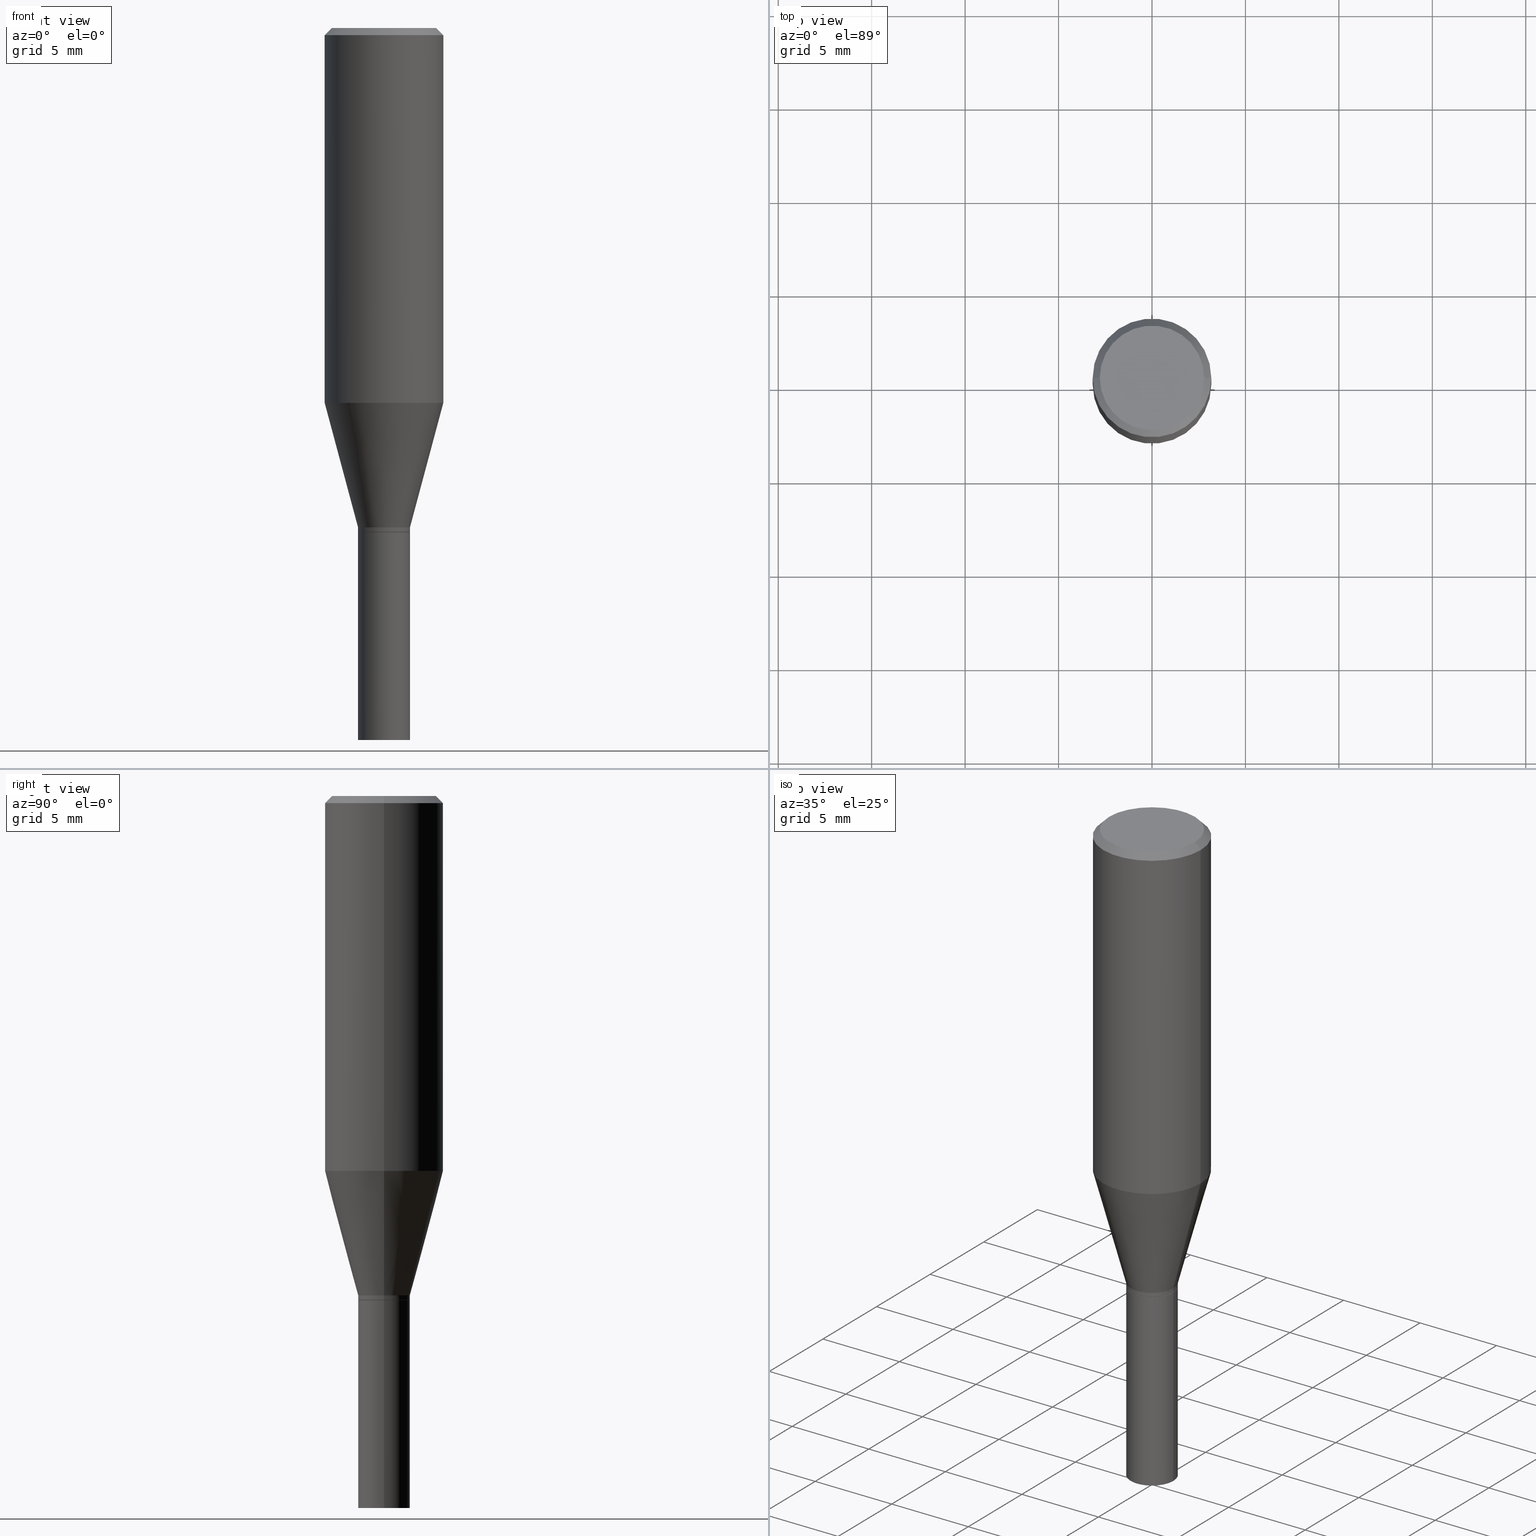
[diagram: canonical four-view strip — front | top / right | iso, engineering-drawing reading convention]
A machine part, canonical four-view strip (front | top / right | iso — engineering-drawing reading convention). The complete STEP part file that produces these views, byte-faithful:
ISO-10303-21;
HEADER;
FILE_DESCRIPTION (( 'STEP AP203' ),
    '1' );
FILE_NAME ('05304.STEP',
    '2024-03-14T18:06:55',
    ( '' ),
    ( '' ),
    'SwSTEP 2.0',
    'SolidWorks 2023',
    '' );
FILE_SCHEMA (( 'CONFIG_CONTROL_DESIGN' ));
ENDSEC;

DATA;
#1 = COORDINATED_UNIVERSAL_TIME_OFFSET ( 5, 0, .BEHIND. ) ;
#2 = CARTESIAN_POINT ( 'NONE',  ( 3.668203209277704895E-29, -5.237222008264718177E-15, -1.500000000000000222 ) ) ;
#3 = AXIS2_PLACEMENT_3D ( 'NONE', #390, #184, #397 ) ;
#4 = ORIENTED_EDGE ( 'NONE', *, *, #311, .T. ) ;
#5 = CARTESIAN_POINT ( 'NONE',  ( 2.572633184106763848E-29, -3.673038368462989448E-15, -1.052000000000000046 ) ) ;
#6 = ORIENTED_EDGE ( 'NONE', *, *, #240, .F. ) ;
#7 = COORDINATED_UNIVERSAL_TIME_OFFSET ( 5, 0, .BEHIND. ) ;
#8 = CARTESIAN_POINT ( 'NONE',  ( 3.668203209277705088E-31, -5.237222008264718399E-17, -0.01499999999999999944 ) ) ;
#9 = VERTEX_POINT ( 'NONE', #372 ) ;
#10 = EDGE_CURVE ( 'NONE', #466, #238, #298, .T. ) ;
#11 = CALENDAR_DATE ( 2024, 14, 3 ) ;
#12 = DIRECTION ( 'NONE',  ( 1.000000000000000000, -6.982962677686270655E-15, 0.000000000000000000 ) ) ;
#13 = AXIS2_PLACEMENT_3D ( 'NONE', #239, #278, #425 ) ;
#14 = CONICAL_SURFACE ( 'NONE', #3, 0.1250000000000000000, 0.7853981633974553844 ) ;
#15 = ORIENTED_EDGE ( 'NONE', *, *, #291, .F. ) ;
#16 = EDGE_CURVE ( 'NONE', #358, #78, #448, .T. ) ;
#17 = ORIENTED_EDGE ( 'NONE', *, *, #36, .T. ) ;
#18 = SHAPE_DEFINITION_REPRESENTATION ( #83, #272 ) ;
#19 = EDGE_LOOP ( 'NONE', ( #419, #158 ) ) ;
#20 =( LENGTH_UNIT ( ) NAMED_UNIT ( * ) SI_UNIT ( $, .METRE. ) );
#21 = EDGE_CURVE ( 'NONE', #417, #261, #107, .T. ) ;
#22 = ORIENTED_EDGE ( 'NONE', *, *, #269, .F. ) ;
#23 = CIRCLE ( 'NONE', #143, 0.05470000000000019291 ) ;
#24 = ORIENTED_EDGE ( 'NONE', *, *, #183, .T. ) ;
#25 = FACE_OUTER_BOUND ( 'NONE', #355, .T. ) ;
#26 = LINE ( 'NONE', #99, #449 ) ;
#27 = AXIS2_PLACEMENT_3D ( 'NONE', #211, #460, #379 ) ;
#28 = AXIS2_PLACEMENT_3D ( 'NONE', #56, #334, #411 ) ;
#29 = CARTESIAN_POINT ( 'NONE',  ( -0.1250000000000000000, -1.868823830520909276E-15, -0.7896368282279090378 ) ) ;
#30 = ADVANCED_FACE ( 'NONE', ( #127 ), #350, .T. ) ;
#31 = FACE_OUTER_BOUND ( 'NONE', #19, .T. ) ;
#32 = FACE_OUTER_BOUND ( 'NONE', #90, .T. ) ;
#33 = DIRECTION ( 'NONE',  ( -2.445468806185136597E-29, 3.491481338843145583E-15, 1.000000000000000000 ) ) ;
#34 = COORDINATED_UNIVERSAL_TIME_OFFSET ( 5, 0, .BEHIND. ) ;
#35 = DIRECTION ( 'NONE',  ( 1.000000000000000000, -6.982962677686268288E-15, 0.000000000000000000 ) ) ;
#36 = EDGE_CURVE ( 'NONE', #188, #43, #221, .T. ) ;
#37 = PERSON_AND_ORGANIZATION_ROLE ( 'creator' ) ;
#38 = CYLINDRICAL_SURFACE ( 'NONE', #377, 0.05469999999999999862 ) ;
#39 = EDGE_LOOP ( 'NONE', ( #313, #84, #185, #365 ) ) ;
#40 = DESIGN_CONTEXT ( 'detailed design', #108, 'design' ) ;
#41 = DIRECTION ( 'NONE',  ( 1.000000000000000000, -6.982962677686266711E-15, 0.000000000000000000 ) ) ;
#42 = LOCAL_TIME ( 14, 6, 55.00000000000000000, #7 ) ;
#43 = VERTEX_POINT ( 'NONE', #92 ) ;
#44 = CC_DESIGN_PERSON_AND_ORGANIZATION_ASSIGNMENT ( #225, #323, ( #191 ) ) ;
#45 = APPROVAL_ROLE ( '' ) ;
#46 = DIRECTION ( 'NONE',  ( -2.445468806185136597E-29, 3.491481338843145583E-15, 1.000000000000000000 ) ) ;
#47 = ORIENTED_EDGE ( 'NONE', *, *, #320, .T. ) ;
#48 = DIRECTION ( 'NONE',  ( -2.445468806185136877E-29, 3.491481338843145188E-15, 1.000000000000000000 ) ) ;
#49 = ORIENTED_EDGE ( 'NONE', *, *, #341, .F. ) ;
#50 = ADVANCED_FACE ( 'NONE', ( #267 ), #94, .F. ) ;
#51 = LOCAL_TIME ( 14, 6, 55.00000000000000000, #215 ) ;
#52 = DIRECTION ( 'NONE',  ( 1.000000000000000000, -6.982962677686268288E-15, 0.000000000000000000 ) ) ;
#53 = UNCERTAINTY_MEASURE_WITH_UNIT (LENGTH_MEASURE( 1.000000000000000082E-05 ), #371, 'distance_accuracy_value', 'NONE');
#54 = CC_DESIGN_PERSON_AND_ORGANIZATION_ASSIGNMENT ( #336, #165, ( #150 ) ) ;
#55 = DIRECTION ( 'NONE',  ( 1.000000000000000000, -6.982962677686266711E-15, 0.000000000000000000 ) ) ;
#56 = CARTESIAN_POINT ( 'NONE',  ( 0.000000000000000000, 0.000000000000000000, 0.000000000000000000 ) ) ;
#57 = EDGE_LOOP ( 'NONE', ( #166, #111, #394, #96 ) ) ;
#58 = ORIENTED_EDGE ( 'NONE', *, *, #16, .T. ) ;
#59 = AXIS2_PLACEMENT_3D ( 'NONE', #461, #457, #421 ) ;
#60 = CIRCLE ( 'NONE', #137, 0.05419999999999999818 ) ;
#61 = ORIENTED_EDGE ( 'NONE', *, *, #385, .T. ) ;
#62 = ADVANCED_FACE ( 'NONE', ( #25 ), #308, .T. ) ;
#63 = CARTESIAN_POINT ( 'NONE',  ( 3.668203209277705088E-31, -5.237222008264718399E-17, -0.01499999999999999944 ) ) ;
#64 = LINE ( 'NONE', #66, #337 ) ;
#65 = VECTOR ( 'NONE', #129, 39.37007874015748143 ) ;
#66 = CARTESIAN_POINT ( 'NONE',  ( 0.05470000000000007495, -4.055006426932429417E-15, -1.052000000000000046 ) ) ;
#67 = LINE ( 'NONE', #172, #131 ) ;
#68 = PLANE ( 'NONE',  #59 ) ;
#69 = VECTOR ( 'NONE', #48, 39.37007874015748143 ) ;
#70 = DATE_TIME_ROLE ( 'classification_date' ) ;
#71 = CARTESIAN_POINT ( 'NONE',  ( 0.05470000000000019291, -4.088175499651439563E-15, -1.061500000000000110 ) ) ;
#72 = ADVANCED_FACE ( 'NONE', ( #193 ), #331, .F. ) ;
#73 = CALENDAR_DATE ( 2024, 14, 3 ) ;
#74 = DIRECTION ( 'NONE',  ( -2.445468806185136597E-29, 3.491481338843145583E-15, 1.000000000000000000 ) ) ;
#75 = ORIENTED_EDGE ( 'NONE', *, *, #95, .F. ) ;
#76 = DATE_AND_TIME ( #73, #132 ) ;
#77 = DIRECTION ( 'NONE',  ( 1.000000000000000000, -6.982962677686266711E-15, 4.876176775795935793E-29 ) ) ;
#78 = VERTEX_POINT ( 'NONE', #458 ) ;
#79 = ADVANCED_FACE ( 'NONE', ( #274 ), #205, .T. ) ;
#80 = APPLICATION_PROTOCOL_DEFINITION ( 'international standard', 'config_control_design', 1994, #108 ) ;
#81 = LINE ( 'NONE', #224, #154 ) ;
#82 = CIRCLE ( 'NONE', #440, 0.05470000000000007495 ) ;
#83 = PRODUCT_DEFINITION_SHAPE ( 'NONE', 'NONE',  #395 ) ;
#84 = ORIENTED_EDGE ( 'NONE', *, *, #291, .T. ) ;
#85 = PERSON_AND_ORGANIZATION ( #462, #283 ) ;
#86 = FACE_OUTER_BOUND ( 'NONE', #453, .T. ) ;
#87 = EDGE_LOOP ( 'NONE', ( #317, #414 ) ) ;
#88 = ORIENTED_EDGE ( 'NONE', *, *, #353, .F. ) ;
#89 = VECTOR ( 'NONE', #189, 39.37007874015748143 ) ;
#90 = EDGE_LOOP ( 'NONE', ( #4, #290, #49, #6 ) ) ;
#91 = CARTESIAN_POINT ( 'NONE',  ( 2.597087872168615393E-29, -3.707953181851421097E-15, -1.062000000000000055 ) ) ;
#92 = CARTESIAN_POINT ( 'NONE',  ( 0.1250000000000000000, -3.629872584931818241E-15, -0.7896368282279090378 ) ) ;
#93 = APPROVAL_DATE_TIME ( #114, #179 ) ;
#94 = PLANE ( 'NONE',  #136 ) ;
#95 = EDGE_CURVE ( 'NONE', #378, #146, #387, .T. ) ;
#96 = ORIENTED_EDGE ( 'NONE', *, *, #155, .T. ) ;
#97 = AXIS2_PLACEMENT_3D ( 'NONE', #98, #345, #310 ) ;
#98 = CARTESIAN_POINT ( 'NONE',  ( 0.000000000000000000, 0.000000000000000000, 0.000000000000000000 ) ) ;
#99 = CARTESIAN_POINT ( 'NONE',  ( -0.05469999999999999862, 3.886668764607747919E-16, -2.690657494369433708E-30 ) ) ;
#100 = CC_DESIGN_DATE_AND_TIME_ASSIGNMENT ( #223, #396, ( #395 ) ) ;
#101 = CARTESIAN_POINT ( 'NONE',  ( 0.05469999999999999862, -3.819680584694387859E-16, 2.667268696360376954E-30 ) ) ;
#102 = AXIS2_PLACEMENT_3D ( 'NONE', #115, #226, #35 ) ;
#103 = CARTESIAN_POINT ( 'NONE',  ( 0.1250000000000000000, -9.252425547934304180E-16, -0.01499999999999999944 ) ) ;
#104 = CYLINDRICAL_SURFACE ( 'NONE', #142, 0.1250000000000000000 ) ;
#105 = ADVANCED_FACE ( 'NONE', ( #204 ), #138, .T. ) ;
#106 = CARTESIAN_POINT ( 'NONE',  ( 2.595865137765522592E-29, -3.706207441181998805E-15, -1.061500000000000110 ) ) ;
#107 = CIRCLE ( 'NONE', #199, 0.05419999999999999818 ) ;
#108 = APPLICATION_CONTEXT ( 'configuration controlled 3d designs of mechanical parts and assemblies' ) ;
#109 = PERSON_AND_ORGANIZATION ( #462, #283 ) ;
#110 = LINE ( 'NONE', #187, #69 ) ;
#111 = ORIENTED_EDGE ( 'NONE', *, *, #149, .F. ) ;
#112 = CARTESIAN_POINT ( 'NONE',  ( 2.597087872168614833E-29, -3.707953181851420308E-15, -1.061999999999999833 ) ) ;
#113 = ADVANCED_FACE ( 'NONE', ( #31 ), #68, .F. ) ;
#114 = DATE_AND_TIME ( #144, #182 ) ;
#115 = CARTESIAN_POINT ( 'NONE',  ( 2.572633184106763848E-29, -3.673038368462989448E-15, -1.052000000000000046 ) ) ;
#116 = ORIENTED_EDGE ( 'NONE', *, *, #415, .T. ) ;
#117 = CIRCLE ( 'NONE', #13, 0.1100000000000000006 ) ;
#118 = CIRCLE ( 'NONE', #102, 0.05470000000000007495 ) ;
#119 = CALENDAR_DATE ( 2024, 14, 3 ) ;
#120 = CARTESIAN_POINT ( 'NONE',  ( 0.000000000000000000, 0.000000000000000000, 0.000000000000000000 ) ) ;
#121 = DIRECTION ( 'NONE',  ( 1.000000000000000000, -6.982962677686269866E-15, 0.000000000000000000 ) ) ;
#122 = CARTESIAN_POINT ( 'NONE',  ( -0.05470000000000013740, 3.886668764607757780E-16, -2.690657494369440014E-30 ) ) ;
#123 = DIRECTION ( 'NONE',  ( 1.000000000000000000, 0.000000000000000000, 0.000000000000000000 ) ) ;
#124 = CIRCLE ( 'NONE', #382, 0.1250000000000000000 ) ;
#125 = CIRCLE ( 'NONE', #231, 0.05469999999999999862 ) ;
#126 = CARTESIAN_POINT ( 'NONE',  ( 1.931032231646322477E-29, -2.757002250221034902E-15, -0.7896368282279090378 ) ) ;
#127 = FACE_OUTER_BOUND ( 'NONE', #39, .T. ) ;
#128 = CARTESIAN_POINT ( 'NONE',  ( 0.05470000000000013740, -3.819680584694397720E-16, 2.667268696360383260E-30 ) ) ;
#129 = DIRECTION ( 'NONE',  ( -2.445468806185136877E-29, 3.491481338843145188E-15, 1.000000000000000000 ) ) ;
#130 = AXIS2_PLACEMENT_3D ( 'NONE', #229, #235, #203 ) ;
#131 = VECTOR ( 'NONE', #327, 39.37007874015748854 ) ;
#132 = LOCAL_TIME ( 14, 6, 55.00000000000000000, #314 ) ;
#133 = FACE_OUTER_BOUND ( 'NONE', #433, .T. ) ;
#134 = CARTESIAN_POINT ( 'NONE',  ( 0.05469999999999999862, -4.089921240320859489E-15, -1.062000000000000055 ) ) ;
#135 = CARTESIAN_POINT ( 'NONE',  ( 2.572633184106763848E-29, -3.673038368462989448E-15, -1.052000000000000046 ) ) ;
#136 = AXIS2_PLACEMENT_3D ( 'NONE', #236, #376, #271 ) ;
#137 = AXIS2_PLACEMENT_3D ( 'NONE', #112, #178, #438 ) ;
#138 = CYLINDRICAL_SURFACE ( 'NONE', #97, 0.05469999999999999862 ) ;
#139 = FACE_OUTER_BOUND ( 'NONE', #285, .T. ) ;
#140 = FACE_OUTER_BOUND ( 'NONE', #153, .T. ) ;
#141 = ORIENTED_EDGE ( 'NONE', *, *, #353, .T. ) ;
#142 = AXIS2_PLACEMENT_3D ( 'NONE', #456, #342, #351 ) ;
#143 = AXIS2_PLACEMENT_3D ( 'NONE', #431, #249, #360 ) ;
#144 = CALENDAR_DATE ( 2024, 14, 3 ) ;
#145 = CARTESIAN_POINT ( 'NONE',  ( 1.931032231646322477E-29, -2.757002250221034902E-15, -0.7896368282279090378 ) ) ;
#146 = VERTEX_POINT ( 'NONE', #171 ) ;
#147 = DIRECTION ( 'NONE',  ( -2.445468806185136597E-29, 3.491481338843145583E-15, 1.000000000000000000 ) ) ;
#148 = ORIENTED_EDGE ( 'NONE', *, *, #155, .F. ) ;
#149 = EDGE_CURVE ( 'NONE', #378, #167, #117, .T. ) ;
#150 = PRODUCT ( '05304', '05304', '', ( #195 ) ) ;
#151 = APPROVAL_ROLE ( '' ) ;
#152 = DIRECTION ( 'NONE',  ( -2.445468806185136597E-29, 3.491481338843145583E-15, 1.000000000000000000 ) ) ;
#153 = EDGE_LOOP ( 'NONE', ( #335, #301, #177, #321 ) ) ;
#154 = VECTOR ( 'NONE', #260, 39.37007874015748143 ) ;
#155 = EDGE_CURVE ( 'NONE', #146, #259, #190, .T. ) ;
#156 = APPROVAL_DATE_TIME ( #175, #243 ) ;
#157 = DIRECTION ( 'NONE',  ( 1.000000000000000000, -6.982962677686260400E-15, 0.000000000000000000 ) ) ;
#158 = ORIENTED_EDGE ( 'NONE', *, *, #426, .T. ) ;
#159 = ADVANCED_FACE ( 'NONE', ( #139 ), #104, .T. ) ;
#160 = CARTESIAN_POINT ( 'NONE',  ( 2.597087872168614833E-29, -3.707953181851420308E-15, -1.061999999999999833 ) ) ;
#161 = CARTESIAN_POINT ( 'NONE',  ( 0.000000000000000000, 0.000000000000000000, 0.000000000000000000 ) ) ;
#162 = VERTEX_POINT ( 'NONE', #134 ) ;
#163 = AXIS2_PLACEMENT_3D ( 'NONE', #217, #74, #289 ) ;
#164 = ORIENTED_EDGE ( 'NONE', *, *, #16, .F. ) ;
#165 = PERSON_AND_ORGANIZATION_ROLE ( 'design_owner' ) ;
#166 = ORIENTED_EDGE ( 'NONE', *, *, #266, .F. ) ;
#167 = VERTEX_POINT ( 'NONE', #279 ) ;
#168 = CARTESIAN_POINT ( 'NONE',  ( 3.576687321579069994E-29, -5.368277968210015545E-15, -1.500000000000000222 ) ) ;
#169 = APPROVAL_PERSON_ORGANIZATION ( #286, #243, #45 ) ;
#170 = DIRECTION ( 'NONE',  ( -0.7071067811865524577, 2.468850131082309125E-15, -0.7071067811865424657 ) ) ;
#171 = CARTESIAN_POINT ( 'NONE',  ( -0.1250000000000000000, -5.165088154517157584E-16, -0.01499999999999999944 ) ) ;
#172 = CARTESIAN_POINT ( 'NONE',  ( 0.1250000000000000000, -9.099344698040885245E-16, -0.01499999999999999944 ) ) ;
#173 = CONICAL_SURFACE ( 'NONE', #370, 0.05470000000000007495, 0.2617993877991500740 ) ;
#174 = DIRECTION ( 'NONE',  ( 2.438088387897960049E-29, -3.491481338843145188E-15, -1.000000000000000000 ) ) ;
#175 = DATE_AND_TIME ( #11, #51 ) ;
#176 = LINE ( 'NONE', #257, #89 ) ;
#177 = ORIENTED_EDGE ( 'NONE', *, *, #240, .T. ) ;
#178 = DIRECTION ( 'NONE',  ( -2.445468806185136597E-29, 3.491481338843145583E-15, 1.000000000000000000 ) ) ;
#179 = APPROVAL ( #248, 'UNSPECIFIED' ) ;
#180 = ORIENTED_EDGE ( 'NONE', *, *, #443, .F. ) ;
#181 =( GEOMETRIC_REPRESENTATION_CONTEXT ( 3 ) GLOBAL_UNCERTAINTY_ASSIGNED_CONTEXT ( ( #53 ) ) GLOBAL_UNIT_ASSIGNED_CONTEXT ( ( #371, #408, #228 ) ) REPRESENTATION_CONTEXT ( 'NONE', 'WORKASPACE' ) );
#182 = LOCAL_TIME ( 14, 6, 55.00000000000000000, #1 ) ;
#183 = EDGE_CURVE ( 'NONE', #9, #162, #420, .T. ) ;
#184 = DIRECTION ( 'NONE',  ( 2.445468806185136597E-29, -3.491481338843145583E-15, -1.000000000000000000 ) ) ;
#185 = ORIENTED_EDGE ( 'NONE', *, *, #409, .T. ) ;
#186 = APPROVAL_STATUS ( 'not_yet_approved' ) ;
#187 = CARTESIAN_POINT ( 'NONE',  ( -0.1250000000000000000, 8.881784197001252323E-16, -6.148668862818632227E-30 ) ) ;
#188 = VERTEX_POINT ( 'NONE', #29 ) ;
#189 = DIRECTION ( 'NONE',  ( -0.7071067811867588482, 7.493145998871117778E-15, 0.7071067811863361863 ) ) ;
#190 = CIRCLE ( 'NONE', #27, 0.1250000000000000000 ) ;
#191 = PRODUCT_DEFINITION_FORMATION_WITH_SPECIFIED_SOURCE ( 'ANY', '', #150, .NOT_KNOWN. ) ;
#192 = DIRECTION ( 'NONE',  ( -2.445468806185136597E-29, 3.491481338843145583E-15, 1.000000000000000000 ) ) ;
#193 = FACE_OUTER_BOUND ( 'NONE', #87, .T. ) ;
#194 = APPLICATION_PROTOCOL_DEFINITION ( 'international standard', 'config_control_design', 1994, #442 ) ;
#195 = MECHANICAL_CONTEXT ( 'NONE', #442, 'mechanical' ) ;
#196 = ORIENTED_EDGE ( 'NONE', *, *, #212, .F. ) ;
#197 = CARTESIAN_POINT ( 'NONE',  ( 3.668203209277704895E-29, -5.237222008264718177E-15, -1.500000000000000222 ) ) ;
#198 = ORIENTED_EDGE ( 'NONE', *, *, #332, .T. ) ;
#199 = AXIS2_PLACEMENT_3D ( 'NONE', #160, #446, #451 ) ;
#200 = CIRCLE ( 'NONE', #459, 0.1100000000000000006 ) ;
#201 = CARTESIAN_POINT ( 'NONE',  ( 2.597087872168614833E-29, -3.707953181851420308E-15, -1.061999999999999833 ) ) ;
#202 = CC_DESIGN_SECURITY_CLASSIFICATION ( #297, ( #191 ) ) ;
#203 = DIRECTION ( 'NONE',  ( 1.000000000000000000, -6.982962677686268288E-15, 0.000000000000000000 ) ) ;
#204 = FACE_OUTER_BOUND ( 'NONE', #251, .T. ) ;
#205 = CYLINDRICAL_SURFACE ( 'NONE', #262, 0.05470000000000013740 ) ;
#206 = AXIS2_PLACEMENT_3D ( 'NONE', #161, #447, #123 ) ;
#207 = DIRECTION ( 'NONE',  ( 0.2588190451025213501, 1.565188264969621968E-15, 0.9659258262890682012 ) ) ;
#208 = APPROVAL ( #427, 'UNSPECIFIED' ) ;
#209 = ADVANCED_FACE ( 'NONE', ( #133 ), #242, .F. ) ;
#210 = CARTESIAN_POINT ( 'NONE',  ( 3.819680584694646704E-16, 0.05469999999999629325, -1.062000000000000277 ) ) ;
#211 = CARTESIAN_POINT ( 'NONE',  ( 3.668203209277705088E-31, -5.237222008264718399E-17, -0.01499999999999999944 ) ) ;
#212 = EDGE_CURVE ( 'NONE', #259, #146, #124, .T. ) ;
#213 = AXIS2_PLACEMENT_3D ( 'NONE', #168, #273, #245 ) ;
#214 = CIRCLE ( 'NONE', #222, 0.1250000000000000000 ) ;
#215 = COORDINATED_UNIVERSAL_TIME_OFFSET ( 5, 0, .BEHIND. ) ;
#216 = CARTESIAN_POINT ( 'NONE',  ( -0.05469999999999999862, -4.083920718597295042E-15, -1.500000000000000222 ) ) ;
#217 = CARTESIAN_POINT ( 'NONE',  ( 2.597087872168615393E-29, -3.707953181851421097E-15, -1.062000000000000055 ) ) ;
#218 = ORIENTED_EDGE ( 'NONE', *, *, #230, .T. ) ;
#219 = CARTESIAN_POINT ( 'NONE',  ( -0.1100000000000000006, 7.943120045868123256E-16, -2.196503395834883125E-16 ) ) ;
#220 = ORIENTED_EDGE ( 'NONE', *, *, #300, .F. ) ;
#221 = CIRCLE ( 'NONE', #439, 0.1250000000000000000 ) ;
#222 = AXIS2_PLACEMENT_3D ( 'NONE', #145, #319, #41 ) ;
#223 = DATE_AND_TIME ( #119, #391 ) ;
#224 = CARTESIAN_POINT ( 'NONE',  ( 0.05419999999999999818, -4.086429758982016481E-15, -1.061999999999999833 ) ) ;
#225 = PERSON_AND_ORGANIZATION ( #462, #283 ) ;
#226 = DIRECTION ( 'NONE',  ( -2.445468806185136597E-29, 3.491481338843145583E-15, 1.000000000000000000 ) ) ;
#227 = ORIENTED_EDGE ( 'NONE', *, *, #385, .F. ) ;
#228 =( NAMED_UNIT ( * ) SI_UNIT ( $, .STERADIAN. ) SOLID_ANGLE_UNIT ( ) );
#229 = CARTESIAN_POINT ( 'NONE',  ( 2.597087872168614833E-29, -3.707953181851420308E-15, -1.061999999999999833 ) ) ;
#230 = EDGE_CURVE ( 'NONE', #368, #253, #26, .T. ) ;
#231 = AXIS2_PLACEMENT_3D ( 'NONE', #91, #234, #121 ) ;
#232 = DIRECTION ( 'NONE',  ( 1.000000000000000000, -6.982962677686266711E-15, 4.880309236314112093E-29 ) ) ;
#233 = ORIENTED_EDGE ( 'NONE', *, *, #443, .T. ) ;
#234 = DIRECTION ( 'NONE',  ( -2.445468806185136597E-29, 3.491481338843145583E-15, 1.000000000000000000 ) ) ;
#235 = DIRECTION ( 'NONE',  ( -2.445468806185136597E-29, 3.491481338843145583E-15, 1.000000000000000000 ) ) ;
#236 = CARTESIAN_POINT ( 'NONE',  ( 2.597087872168615393E-29, -3.707953181851421097E-15, -1.062000000000000055 ) ) ;
#237 = AXIS2_PLACEMENT_3D ( 'NONE', #2, #435, #157 ) ;
#238 = VERTEX_POINT ( 'NONE', #380 ) ;
#239 = CARTESIAN_POINT ( 'NONE',  ( 5.371480537193796611E-45, -7.669050617262902492E-31, -2.196503395834828644E-16 ) ) ;
#240 = EDGE_CURVE ( 'NONE', #78, #43, #64, .T. ) ;
#241 = DIRECTION ( 'NONE',  ( -2.445468806185136877E-29, 3.491481338843145188E-15, 1.000000000000000000 ) ) ;
#242 = PLANE ( 'NONE',  #316 ) ;
#243 = APPROVAL ( #186, 'UNSPECIFIED' ) ;
#244 = DIRECTION ( 'NONE',  ( -1.000000000000000000, 6.982962677686265922E-15, -4.876176775795935793E-29 ) ) ;
#245 = DIRECTION ( 'NONE',  ( 1.000000000000000000, -6.982962677686265922E-15, 4.876176775795935793E-29 ) ) ;
#246 = SECURITY_CLASSIFICATION_LEVEL ( 'unclassified' ) ;
#247 = FACE_OUTER_BOUND ( 'NONE', #57, .T. ) ;
#248 = APPROVAL_STATUS ( 'not_yet_approved' ) ;
#249 = DIRECTION ( 'NONE',  ( -2.445468806185136597E-29, 3.491481338843145583E-15, 1.000000000000000000 ) ) ;
#250 = DIRECTION ( 'NONE',  ( -1.000000000000000000, 6.982962677686266711E-15, 0.000000000000000000 ) ) ;
#251 = EDGE_LOOP ( 'NONE', ( #198, #218, #180, #299 ) ) ;
#252 = CARTESIAN_POINT ( 'NONE',  ( -0.05470000000000007495, -3.284371492002214064E-15, -1.052000000000000046 ) ) ;
#253 = VERTEX_POINT ( 'NONE', #306 ) ;
#254 = CLOSED_SHELL ( 'NONE', ( #105, #72, #381, #209 ) ) ;
#255 = AXIS2_PLACEMENT_3D ( 'NONE', #197, #413, #292 ) ;
#256 = DATE_AND_TIME ( #430, #42 ) ;
#257 = CARTESIAN_POINT ( 'NONE',  ( -0.05419999999999999818, -3.322839019069446218E-15, -1.061999999999999833 ) ) ;
#258 = ADVANCED_FACE ( 'NONE', ( #32 ), #173, .T. ) ;
#259 = VERTEX_POINT ( 'NONE', #103 ) ;
#260 = DIRECTION ( 'NONE',  ( 0.7071067811867588482, -2.468850131084470210E-15, 0.7071067811863361863 ) ) ;
#261 = VERTEX_POINT ( 'NONE', #384 ) ;
#262 = AXIS2_PLACEMENT_3D ( 'NONE', #303, #33, #309 ) ;
#263 = CONICAL_SURFACE ( 'NONE', #432, 0.05470000000000007495, 0.2617993877991500740 ) ;
#264 = CARTESIAN_POINT ( 'NONE',  ( 5.371480537193796611E-45, -7.669050617262902492E-31, -2.196503395834828644E-16 ) ) ;
#265 = DIRECTION ( 'NONE',  ( -2.445468806185136597E-29, 3.491481338843145583E-15, 1.000000000000000000 ) ) ;
#266 = EDGE_CURVE ( 'NONE', #167, #259, #67, .T. ) ;
#267 = FACE_OUTER_BOUND ( 'NONE', #416, .T. ) ;
#268 = ORIENTED_EDGE ( 'NONE', *, *, #341, .T. ) ;
#269 = EDGE_CURVE ( 'NONE', #43, #259, #284, .T. ) ;
#270 = CIRCLE ( 'NONE', #450, 0.05470000000000019291 ) ;
#271 = DIRECTION ( 'NONE',  ( 1.000000000000000000, -6.982962677686265922E-15, 4.876176775795935793E-29 ) ) ;
#272 = ADVANCED_BREP_SHAPE_REPRESENTATION ( '05304', ( #362, #356, #206 ), #181 ) ;
#273 = DIRECTION ( 'NONE',  ( -2.438088387897960049E-29, 3.491481338843145188E-15, 1.000000000000000000 ) ) ;
#274 = FACE_OUTER_BOUND ( 'NONE', #441, .T. ) ;
#275 = EDGE_CURVE ( 'NONE', #466, #358, #270, .T. ) ;
#276 = DIRECTION ( 'NONE',  ( -2.445468806185136597E-29, 3.491481338843145583E-15, 1.000000000000000000 ) ) ;
#277 = AXIS2_PLACEMENT_3D ( 'NONE', #354, #152, #77 ) ;
#278 = DIRECTION ( 'NONE',  ( -2.445468806185136597E-29, 3.491481338843145583E-15, 1.000000000000000000 ) ) ;
#279 = CARTESIAN_POINT ( 'NONE',  ( 0.1100000000000000006, -8.322946247794788808E-16, -2.196503395834772438E-16 ) ) ;
#280 = PERSON_AND_ORGANIZATION ( #462, #283 ) ;
#281 = DIRECTION ( 'NONE',  ( -2.445468806185136597E-29, 3.491481338843145583E-15, 1.000000000000000000 ) ) ;
#282 = ORIENTED_EDGE ( 'NONE', *, *, #269, .T. ) ;
#283 = ORGANIZATION ( 'UNSPECIFIED', 'UNSPECIFIED', '' ) ;
#284 = LINE ( 'NONE', #324, #418 ) ;
#285 = EDGE_LOOP ( 'NONE', ( #220, #17, #282, #148 ) ) ;
#286 = PERSON_AND_ORGANIZATION ( #462, #283 ) ;
#287 = DIRECTION ( 'NONE',  ( 1.000000000000000000, -6.982962677686268288E-15, 0.000000000000000000 ) ) ;
#288 = EDGE_LOOP ( 'NONE', ( #61, #410, #398, #164 ) ) ;
#289 = DIRECTION ( 'NONE',  ( 1.000000000000000000, -6.982962677686269866E-15, 0.000000000000000000 ) ) ;
#290 = ORIENTED_EDGE ( 'NONE', *, *, #399, .T. ) ;
#291 = EDGE_CURVE ( 'NONE', #261, #417, #60, .T. ) ;
#292 = DIRECTION ( 'NONE',  ( 1.000000000000000000, -6.982962677686260400E-15, 0.000000000000000000 ) ) ;
#293 = ORIENTED_EDGE ( 'NONE', *, *, #230, .F. ) ;
#294 = ORIENTED_EDGE ( 'NONE', *, *, #300, .T. ) ;
#295 = FACE_OUTER_BOUND ( 'NONE', #288, .T. ) ;
#296 = DIRECTION ( 'NONE',  ( -2.445468806185136877E-29, 3.491481338843145188E-15, 1.000000000000000000 ) ) ;
#297 = SECURITY_CLASSIFICATION ( '', '', #246 ) ;
#298 = LINE ( 'NONE', #122, #429 ) ;
#299 = ORIENTED_EDGE ( 'NONE', *, *, #183, .F. ) ;
#300 = EDGE_CURVE ( 'NONE', #188, #146, #110, .T. ) ;
#301 = ORIENTED_EDGE ( 'NONE', *, *, #386, .T. ) ;
#302 = CC_DESIGN_APPROVAL ( #243, ( #191 ) ) ;
#303 = CARTESIAN_POINT ( 'NONE',  ( 0.000000000000000000, 0.000000000000000000, 0.000000000000000000 ) ) ;
#304 = DIRECTION ( 'NONE',  ( -2.445468806185136597E-29, 3.491481338843145583E-15, 1.000000000000000000 ) ) ;
#305 = DIMENSIONAL_EXPONENTS ( 1.000000000000000000, 0.000000000000000000, 0.000000000000000000, 0.000000000000000000, 0.000000000000000000, 0.000000000000000000, 0.000000000000000000 ) ;
#306 = CARTESIAN_POINT ( 'NONE',  ( -0.05469999999999999862, -4.083920718597295042E-15, -1.062000000000000055 ) ) ;
#307 = ADVANCED_FACE ( 'NONE', ( #140 ), #263, .T. ) ;
#308 = CONICAL_SURFACE ( 'NONE', #401, 0.05419999999999999818, 0.7853981633977471510 ) ;
#309 = DIRECTION ( 'NONE',  ( 1.000000000000000000, -6.982962677686267499E-15, 4.876176775795935232E-29 ) ) ;
#310 = DIRECTION ( 'NONE',  ( 1.000000000000000000, -6.982962677686266711E-15, 4.876176775795935793E-29 ) ) ;
#311 = EDGE_CURVE ( 'NONE', #78, #238, #118, .T. ) ;
#312 = CYLINDRICAL_SURFACE ( 'NONE', #277, 0.1250000000000000000 ) ;
#313 = ORIENTED_EDGE ( 'NONE', *, *, #320, .F. ) ;
#314 = COORDINATED_UNIVERSAL_TIME_OFFSET ( 5, 0, .BEHIND. ) ;
#315 = DIRECTION ( 'NONE',  ( 1.000000000000000000, -6.982962677686268288E-15, 0.000000000000000000 ) ) ;
#316 = AXIS2_PLACEMENT_3D ( 'NONE', #210, #174, #244 ) ;
#317 = ORIENTED_EDGE ( 'NONE', *, *, #332, .F. ) ;
#318 = CIRCLE ( 'NONE', #237, 0.05469999999999999862 ) ;
#319 = DIRECTION ( 'NONE',  ( -2.445468806185136597E-29, 3.491481338843145583E-15, 1.000000000000000000 ) ) ;
#320 = EDGE_CURVE ( 'NONE', #261, #466, #176, .T. ) ;
#321 = ORIENTED_EDGE ( 'NONE', *, *, #36, .F. ) ;
#322 = CC_DESIGN_DATE_AND_TIME_ASSIGNMENT ( #76, #70, ( #297 ) ) ;
#323 = PERSON_AND_ORGANIZATION_ROLE ( 'design_supplier' ) ;
#324 = CARTESIAN_POINT ( 'NONE',  ( 0.1250000000000000000, -8.728703347107833388E-16, 6.095220969744919741E-30 ) ) ;
#325 = ORIENTED_EDGE ( 'NONE', *, *, #212, .T. ) ;
#326 = PERSON_AND_ORGANIZATION ( #462, #283 ) ;
#327 = DIRECTION ( 'NONE',  ( 0.7071067811865524577, -7.319954787623271823E-15, -0.7071067811865424657 ) ) ;
#328 = CLOSED_SHELL ( 'NONE', ( #455, #62, #346, #369, #258, #307, #159, #349, #113, #50, #30, #79 ) ) ;
#329 = CC_DESIGN_APPROVAL ( #208, ( #395 ) ) ;
#330 = LENGTH_MEASURE_WITH_UNIT ( LENGTH_MEASURE( 0.02539999999999999897 ), #20 );
#331 = PLANE ( 'NONE',  #213 ) ;
#332 = EDGE_CURVE ( 'NONE', #9, #368, #318, .T. ) ;
#333 = EDGE_LOOP ( 'NONE', ( #340, #375, #325, #75 ) ) ;
#334 = DIRECTION ( 'NONE',  ( -2.445468806185136597E-29, 3.491481338843145583E-15, 1.000000000000000000 ) ) ;
#335 = ORIENTED_EDGE ( 'NONE', *, *, #399, .F. ) ;
#336 = PERSON_AND_ORGANIZATION ( #462, #283 ) ;
#337 = VECTOR ( 'NONE', #207, 39.37007874015747433 ) ;
#338 = CIRCLE ( 'NONE', #255, 0.05469999999999999862 ) ;
#339 = DIRECTION ( 'NONE',  ( -2.445468806185136597E-29, 3.491481338843145583E-15, 1.000000000000000000 ) ) ;
#340 = ORIENTED_EDGE ( 'NONE', *, *, #426, .F. ) ;
#341 = EDGE_CURVE ( 'NONE', #43, #188, #214, .T. ) ;
#342 = DIRECTION ( 'NONE',  ( -2.445468806185136597E-29, 3.491481338843145583E-15, 1.000000000000000000 ) ) ;
#343 = VECTOR ( 'NONE', #348, 39.37007874015748143 ) ;
#344 = CONICAL_SURFACE ( 'NONE', #454, 0.1250000000000000000, 0.7853981633974553844 ) ;
#345 = DIRECTION ( 'NONE',  ( -2.445468806185136597E-29, 3.491481338843145583E-15, 1.000000000000000000 ) ) ;
#346 = ADVANCED_FACE ( 'NONE', ( #406 ), #344, .T. ) ;
#347 = CARTESIAN_POINT ( 'NONE',  ( -0.1250000000000000000, 8.204981146281362596E-16, -0.01499999999999999944 ) ) ;
#348 = DIRECTION ( 'NONE',  ( -2.445468806185136877E-29, 3.491481338843145188E-15, 1.000000000000000000 ) ) ;
#349 = ADVANCED_FACE ( 'NONE', ( #247 ), #14, .T. ) ;
#350 = CONICAL_SURFACE ( 'NONE', #130, 0.05419999999999999818, 0.7853981633977471510 ) ;
#351 = DIRECTION ( 'NONE',  ( 1.000000000000000000, -6.982962677686266711E-15, 4.876176775795935793E-29 ) ) ;
#352 = APPROVAL_PERSON_ORGANIZATION ( #280, #208, #151 ) ;
#353 = EDGE_CURVE ( 'NONE', #253, #162, #363, .T. ) ;
#354 = CARTESIAN_POINT ( 'NONE',  ( 0.000000000000000000, 0.000000000000000000, 0.000000000000000000 ) ) ;
#355 = EDGE_LOOP ( 'NONE', ( #437, #47, #227, #361 ) ) ;
#356 = MANIFOLD_SOLID_BREP ( 'Body-Move/Copy2[2]', #328 ) ;
#357 = DIRECTION ( 'NONE',  ( 1.000000000000000000, -6.982962677686266711E-15, 4.876176775795935793E-29 ) ) ;
#358 = VERTEX_POINT ( 'NONE', #71 ) ;
#359 = APPROVAL_DATE_TIME ( #256, #208 ) ;
#360 = DIRECTION ( 'NONE',  ( 1.000000000000000000, -6.982962677686270655E-15, 0.000000000000000000 ) ) ;
#361 = ORIENTED_EDGE ( 'NONE', *, *, #409, .F. ) ;
#362 = MANIFOLD_SOLID_BREP ( 'Body-Move/Copy2[1]', #254 ) ;
#363 = CIRCLE ( 'NONE', #163, 0.05469999999999999862 ) ;
#364 = CARTESIAN_POINT ( 'NONE',  ( 2.572633184106763848E-29, -3.673038368462989448E-15, -1.052000000000000046 ) ) ;
#365 = ORIENTED_EDGE ( 'NONE', *, *, #275, .F. ) ;
#366 = DIRECTION ( 'NONE',  ( -2.445468806185136877E-29, 3.491481338843145188E-15, 1.000000000000000000 ) ) ;
#367 = ORIENTED_EDGE ( 'NONE', *, *, #275, .T. ) ;
#368 = VERTEX_POINT ( 'NONE', #216 ) ;
#369 = ADVANCED_FACE ( 'NONE', ( #393 ), #312, .T. ) ;
#370 = AXIS2_PLACEMENT_3D ( 'NONE', #135, #276, #424 ) ;
#371 =( CONVERSION_BASED_UNIT ( 'INCH', #330 ) LENGTH_UNIT ( ) NAMED_UNIT ( #305 ) );
#372 = CARTESIAN_POINT ( 'NONE',  ( 0.05469999999999999862, -5.619190066734157357E-15, -1.500000000000000222 ) ) ;
#373 = CYLINDRICAL_SURFACE ( 'NONE', #28, 0.05470000000000013740 ) ;
#374 = CC_DESIGN_PERSON_AND_ORGANIZATION_ASSIGNMENT ( #389, #463, ( #297 ) ) ;
#375 = ORIENTED_EDGE ( 'NONE', *, *, #266, .T. ) ;
#376 = DIRECTION ( 'NONE',  ( -2.438088387897960049E-29, 3.491481338843145188E-15, 1.000000000000000000 ) ) ;
#377 = AXIS2_PLACEMENT_3D ( 'NONE', #120, #281, #357 ) ;
#378 = VERTEX_POINT ( 'NONE', #219 ) ;
#379 = DIRECTION ( 'NONE',  ( 1.000000000000000000, -6.982962677686266711E-15, 0.000000000000000000 ) ) ;
#380 = CARTESIAN_POINT ( 'NONE',  ( -0.05470000000000007495, -2.576597661261561867E-15, -1.052000000000000046 ) ) ;
#381 = ADVANCED_FACE ( 'NONE', ( #86 ), #38, .T. ) ;
#382 = AXIS2_PLACEMENT_3D ( 'NONE', #63, #304, #383 ) ;
#383 = DIRECTION ( 'NONE',  ( 1.000000000000000000, -6.982962677686266711E-15, 0.000000000000000000 ) ) ;
#384 = CARTESIAN_POINT ( 'NONE',  ( -0.05419999999999999818, -3.320189791895334622E-15, -1.061999999999999833 ) ) ;
#385 = EDGE_CURVE ( 'NONE', #358, #466, #23, .T. ) ;
#386 = EDGE_CURVE ( 'NONE', #238, #78, #82, .T. ) ;
#387 = LINE ( 'NONE', #347, #388 ) ;
#388 = VECTOR ( 'NONE', #170, 39.37007874015748854 ) ;
#389 = PERSON_AND_ORGANIZATION ( #462, #283 ) ;
#390 = CARTESIAN_POINT ( 'NONE',  ( 3.668203209277705088E-31, -5.237222008264718399E-17, -0.01499999999999999944 ) ) ;
#391 = LOCAL_TIME ( 14, 6, 55.00000000000000000, #34 ) ;
#392 = APPROVAL_ROLE ( '' ) ;
#393 = FACE_OUTER_BOUND ( 'NONE', #407, .T. ) ;
#394 = ORIENTED_EDGE ( 'NONE', *, *, #95, .T. ) ;
#395 = PRODUCT_DEFINITION ( 'UNKNOWN', '', #191, #40 ) ;
#396 = DATE_TIME_ROLE ( 'creation_date' ) ;
#397 = DIRECTION ( 'NONE',  ( -1.000000000000000000, 6.982962677686266711E-15, 0.000000000000000000 ) ) ;
#398 = ORIENTED_EDGE ( 'NONE', *, *, #311, .F. ) ;
#399 = EDGE_CURVE ( 'NONE', #238, #188, #436, .T. ) ;
#400 = DIRECTION ( 'NONE',  ( -0.2588190451025213501, 5.211531920934551042E-15, 0.9659258262890682012 ) ) ;
#401 = AXIS2_PLACEMENT_3D ( 'NONE', #201, #339, #52 ) ;
#402 = VECTOR ( 'NONE', #400, 39.37007874015747433 ) ;
#403 = ORIENTED_EDGE ( 'NONE', *, *, #386, .F. ) ;
#404 = APPROVAL_PERSON_ORGANIZATION ( #109, #179, #392 ) ;
#405 = PERSON_AND_ORGANIZATION_ROLE ( 'creator' ) ;
#406 = FACE_OUTER_BOUND ( 'NONE', #333, .T. ) ;
#407 = EDGE_LOOP ( 'NONE', ( #268, #294, #196, #22 ) ) ;
#408 =( NAMED_UNIT ( * ) PLANE_ANGLE_UNIT ( ) SI_UNIT ( $, .RADIAN. ) );
#409 = EDGE_CURVE ( 'NONE', #417, #358, #81, .T. ) ;
#410 = ORIENTED_EDGE ( 'NONE', *, *, #10, .T. ) ;
#411 = DIRECTION ( 'NONE',  ( 1.000000000000000000, -6.982962677686267499E-15, 4.876176775795935232E-29 ) ) ;
#412 = ORIENTED_EDGE ( 'NONE', *, *, #21, .F. ) ;
#413 = DIRECTION ( 'NONE',  ( -2.445468806185136597E-29, 3.491481338843145583E-15, 1.000000000000000000 ) ) ;
#414 = ORIENTED_EDGE ( 'NONE', *, *, #415, .F. ) ;
#415 = EDGE_CURVE ( 'NONE', #368, #9, #338, .T. ) ;
#416 = EDGE_LOOP ( 'NONE', ( #412, #15 ) ) ;
#417 = VERTEX_POINT ( 'NONE', #445 ) ;
#418 = VECTOR ( 'NONE', #366, 39.37007874015748143 ) ;
#419 = ORIENTED_EDGE ( 'NONE', *, *, #149, .T. ) ;
#420 = LINE ( 'NONE', #101, #343 ) ;
#421 = DIRECTION ( 'NONE',  ( -1.000000000000000000, 6.982962677686265922E-15, -4.876176775795935793E-29 ) ) ;
#422 = CC_DESIGN_PERSON_AND_ORGANIZATION_ASSIGNMENT ( #85, #37, ( #191 ) ) ;
#423 = CC_DESIGN_APPROVAL ( #179, ( #297 ) ) ;
#424 = DIRECTION ( 'NONE',  ( 1.000000000000000000, -6.982962677686268288E-15, 0.000000000000000000 ) ) ;
#425 = DIRECTION ( 'NONE',  ( 1.000000000000000000, -6.982962677686266711E-15, 4.880309236314112093E-29 ) ) ;
#426 = EDGE_CURVE ( 'NONE', #167, #378, #200, .T. ) ;
#427 = APPROVAL_STATUS ( 'not_yet_approved' ) ;
#428 = DIRECTION ( 'NONE',  ( 2.445468806185136597E-29, -3.491481338843145583E-15, -1.000000000000000000 ) ) ;
#429 = VECTOR ( 'NONE', #296, 39.37007874015748143 ) ;
#430 = CALENDAR_DATE ( 2024, 14, 3 ) ;
#431 = CARTESIAN_POINT ( 'NONE',  ( 2.595865137765522592E-29, -3.706207441181998805E-15, -1.061500000000000110 ) ) ;
#432 = AXIS2_PLACEMENT_3D ( 'NONE', #364, #46, #315 ) ;
#433 = EDGE_LOOP ( 'NONE', ( #233, #141 ) ) ;
#434 = PRODUCT_RELATED_PRODUCT_CATEGORY ( 'detail', '', ( #150 ) ) ;
#435 = DIRECTION ( 'NONE',  ( -2.445468806185136597E-29, 3.491481338843145583E-15, 1.000000000000000000 ) ) ;
#436 = LINE ( 'NONE', #252, #402 ) ;
#437 = ORIENTED_EDGE ( 'NONE', *, *, #21, .T. ) ;
#438 = DIRECTION ( 'NONE',  ( 1.000000000000000000, -6.982962677686268288E-15, 0.000000000000000000 ) ) ;
#439 = AXIS2_PLACEMENT_3D ( 'NONE', #126, #265, #55 ) ;
#440 = AXIS2_PLACEMENT_3D ( 'NONE', #5, #147, #287 ) ;
#441 = EDGE_LOOP ( 'NONE', ( #452, #367, #58, #403 ) ) ;
#442 = APPLICATION_CONTEXT ( 'configuration controlled 3d designs of mechanical parts and assemblies' ) ;
#443 = EDGE_CURVE ( 'NONE', #162, #253, #125, .T. ) ;
#444 = CARTESIAN_POINT ( 'NONE',  ( -0.05470000000000019291, -3.317540564721223027E-15, -1.061500000000000110 ) ) ;
#445 = CARTESIAN_POINT ( 'NONE',  ( 0.05419999999999999818, -4.086429758982016481E-15, -1.061999999999999833 ) ) ;
#446 = DIRECTION ( 'NONE',  ( -2.445468806185136597E-29, 3.491481338843145583E-15, 1.000000000000000000 ) ) ;
#447 = DIRECTION ( 'NONE',  ( 0.000000000000000000, 0.000000000000000000, 1.000000000000000000 ) ) ;
#448 = LINE ( 'NONE', #128, #65 ) ;
#449 = VECTOR ( 'NONE', #241, 39.37007874015748143 ) ;
#450 = AXIS2_PLACEMENT_3D ( 'NONE', #106, #464, #12 ) ;
#451 = DIRECTION ( 'NONE',  ( 1.000000000000000000, -6.982962677686268288E-15, 0.000000000000000000 ) ) ;
#452 = ORIENTED_EDGE ( 'NONE', *, *, #10, .F. ) ;
#453 = EDGE_LOOP ( 'NONE', ( #293, #116, #24, #88 ) ) ;
#454 = AXIS2_PLACEMENT_3D ( 'NONE', #8, #428, #250 ) ;
#455 = ADVANCED_FACE ( 'NONE', ( #295 ), #373, .T. ) ;
#456 = CARTESIAN_POINT ( 'NONE',  ( 0.000000000000000000, 0.000000000000000000, 0.000000000000000000 ) ) ;
#457 = DIRECTION ( 'NONE',  ( 2.438088387897960049E-29, -3.491481338843145188E-15, -1.000000000000000000 ) ) ;
#458 = CARTESIAN_POINT ( 'NONE',  ( 0.05470000000000007495, -4.055006426932429417E-15, -1.052000000000000046 ) ) ;
#459 = AXIS2_PLACEMENT_3D ( 'NONE', #264, #192, #232 ) ;
#460 = DIRECTION ( 'NONE',  ( -2.445468806185136597E-29, 3.491481338843145583E-15, 1.000000000000000000 ) ) ;
#461 = CARTESIAN_POINT ( 'NONE',  ( 7.681258945454893776E-16, 0.1100000000000000006, -4.938881170644875139E-16 ) ) ;
#462 = PERSON ( 'UNSPECIFIED', 'UNSPECIFIED', 'UNSPECIFIED', ('UNSPECIFIED'), ('UNSPECIFIED'), ('UNSPECIFIED') ) ;
#463 = PERSON_AND_ORGANIZATION_ROLE ( 'classification_officer' ) ;
#464 = DIRECTION ( 'NONE',  ( -2.445468806185136597E-29, 3.491481338843145583E-15, 1.000000000000000000 ) ) ;
#465 = CC_DESIGN_PERSON_AND_ORGANIZATION_ASSIGNMENT ( #326, #405, ( #395 ) ) ;
#466 = VERTEX_POINT ( 'NONE', #444 ) ;
ENDSEC;
END-ISO-10303-21;
